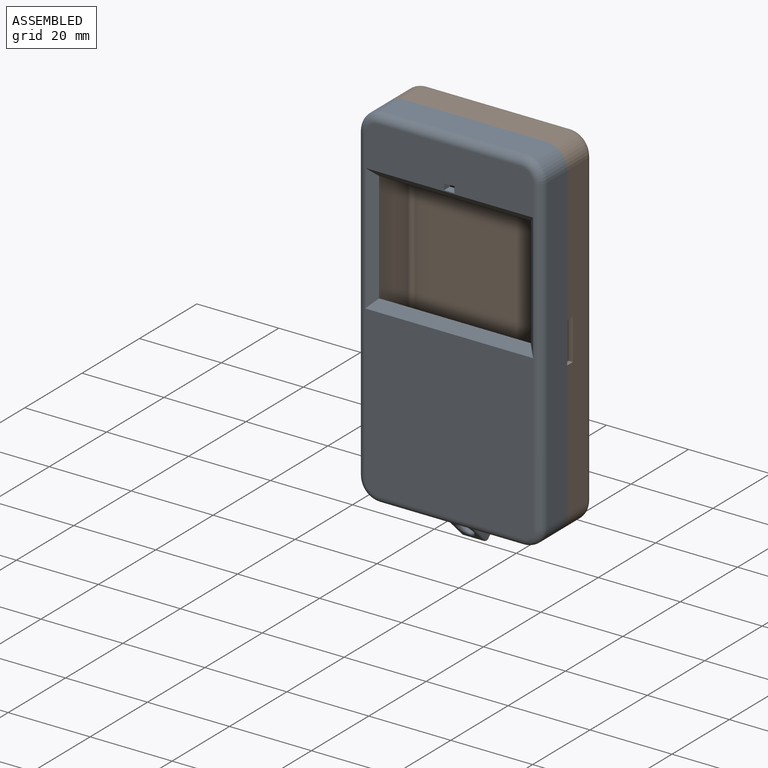
[diagram: assembled view]
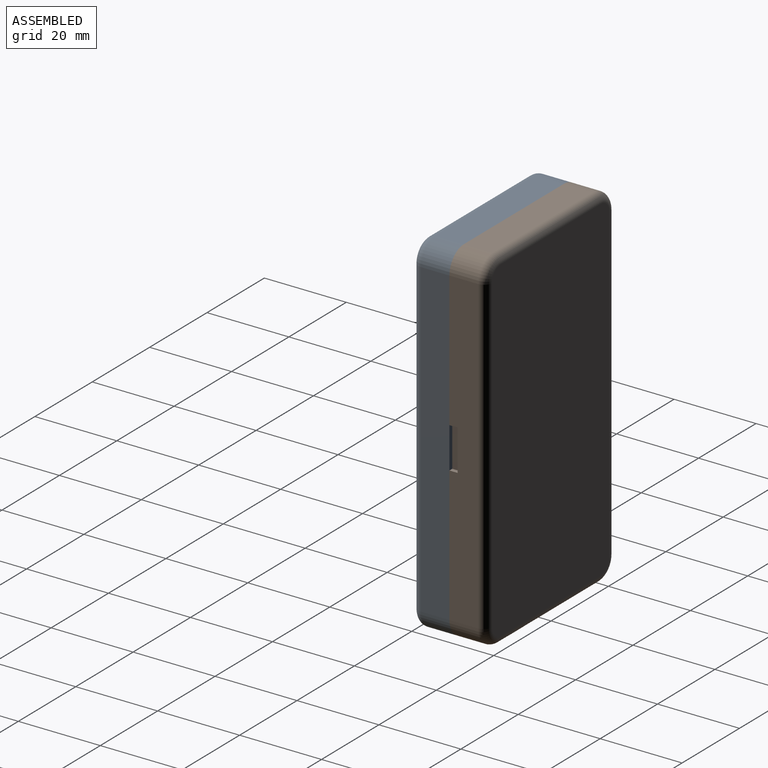
[diagram: assembled view, second angle]
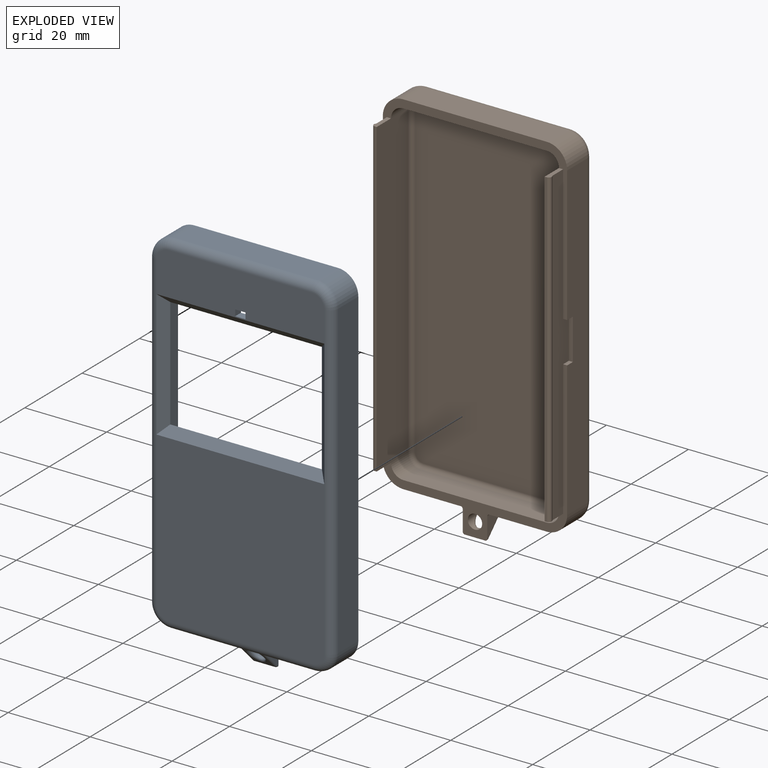
[diagram: exploded view]
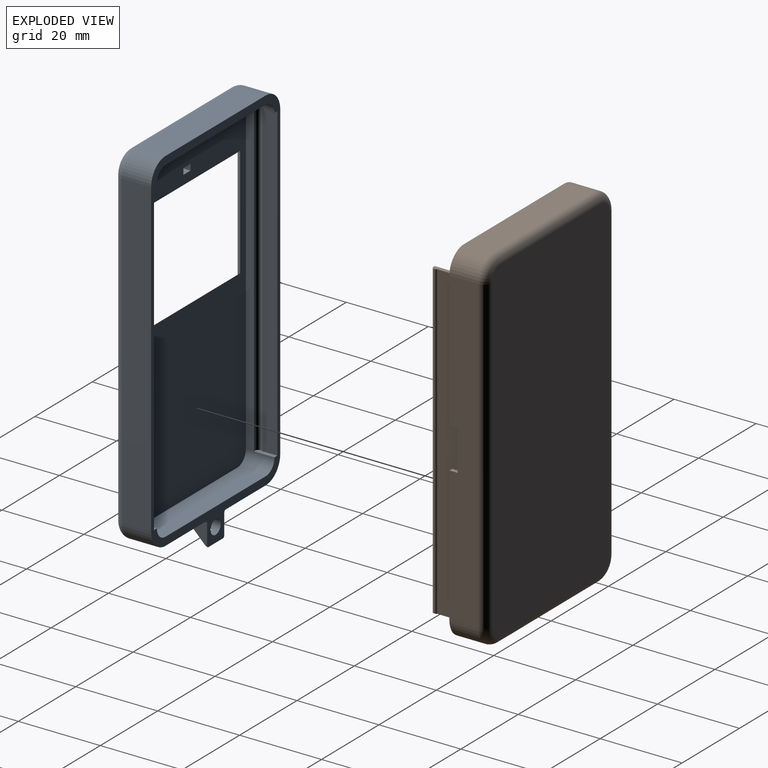
[diagram: exploded view, second angle]
ASSEMBLY  parts=2 mates=3
PART A: 63 faces, bbox 45.8x9x92.5 mm
  f0: plane 76x3.7mm, normal (1,0,0), area 281.3mm2, adj f7,f40,f42,f45
  f1: plane 76x3.7mm, normal (-1,0,0), area 281.3mm2, adj f7,f41,f43,f44
  f2: plane 76x0.45mm, normal (0,-1,0), area 34.3mm2, adj f32,f40,f42,f61
  f3: plane 76x0.45mm, normal (0,-1,0), area 34.3mm2, adj f28,f41,f43,f62
  f4: plane 41x40.5mm, normal (0,1,0), area 1656.6mm2, adj f16,f18,f20,f22,f23,f39
  f5: plane 41x10.5mm, normal (0,1,0), area 422.9mm2, adj f16,f17,f19,f21,f23,f24,f25,f26
  f6: plane 82x41mm, normal (0,-1,0), area 2351.5mm2, adj f24,f25,f26,f27,f28,f29,f30,f31
  f7: plane 92x45mm, normal (0,-1,0), area 368.6mm2, adj f0,f1,f8,f9,f10,f11,f12,f13
  f8: plane 76x7mm, normal (-1,0,0), area 532mm2, adj f7,f12,f14,f16
  f9: plane 76x7mm, normal (1,0,0), area 532mm2, adj f7,f13,f15,f23
  f10: plane 35x7mm, normal (0,0,1), area 245mm2, adj f7,f14,f15,f19
  f11: plane 35x7mm, normal (0,0,-1), area 199.3mm2, adj f7,f12,f13,f20,f53,f55,f57,f58
  f12: cylinder r=5mm len=7mm, axis (0,-1,0), area 55mm2, adj f7,f8,f11,f18
  f13: cylinder r=5mm len=7mm, axis (0,1,0), area 55mm2, adj f7,f9,f11,f22
  f14: cylinder r=5mm len=7mm, axis (0,1,0), area 55mm2, adj f7,f8,f10,f17
  f15: cylinder r=5mm len=7mm, axis (0,-1,0), area 55mm2, adj f7,f9,f10,f21
  f16: cylinder r=2mm len=76mm, axis (0,0,1), area 238.8mm2, adj f4,f5,f8,f17,f18,f38
  f17: torus R=3mm, axis (0,1,0), area 21.1mm2, adj f5,f14,f16,f19
  f18: torus R=3mm, axis (0,1,0), area 21.1mm2, adj f4,f12,f16,f20
  f19: cylinder r=2mm len=35mm, axis (1,0,0), area 110mm2, adj f5,f10,f17,f21
  f20: cylinder r=2mm len=35mm, axis (-1,0,0), area 110mm2, adj f4,f11,f18,f22
  f21: torus R=3mm, axis (0,1,0), area 21.1mm2, adj f5,f15,f19,f23
  f22: torus R=3mm, axis (0,1,0), area 21.1mm2, adj f4,f13,f20,f23
  f23: cylinder r=2mm len=76mm, axis (0,0,-1), area 238.8mm2, adj f4,f5,f9,f21,f22,f37
  f24: plane 2x1.5mm, normal (1,0,0), area 3mm2, adj f5,f6,f25,f27
  f25: plane 2.5x2mm, normal (0,0,-1), area 5mm2, adj f5,f6,f24,f26
  f26: plane 2x1.5mm, normal (-1,0,0), area 3mm2, adj f5,f6,f25,f27
  f27: plane 2.5x2mm, normal (0,0,1), area 5mm2, adj f5,f6,f24,f26
  f28: plane 76x2mm, normal (-1,0,0), area 152mm2, adj f3,f6,f29,f35
  f29: cylinder r=3mm len=7mm, axis (0,1,0), area 33mm2, adj f6,f7,f28,f30,f43
  f30: plane 35x7mm, normal (0,0,1), area 245mm2, adj f6,f7,f29,f31
  f31: cylinder r=3mm len=7mm, axis (0,1,0), area 33mm2, adj f6,f7,f30,f32,f42
  f32: plane 76x2mm, normal (1,0,0), area 152mm2, adj f2,f6,f31,f33
  f33: cylinder r=3mm len=7mm, axis (0,1,0), area 33mm2, adj f6,f7,f32,f34,f40
  f34: plane 35x7mm, normal (0,0,-1), area 245mm2, adj f6,f7,f33,f35
  f35: cylinder r=3mm len=7mm, axis (0,1,0), area 33mm2, adj f6,f7,f28,f34,f41
  f36: plane 41x2mm, normal (0,0.71,-0.71), area 110.3mm2, adj f5,f6,f37,f38
  f37: plane 31x2mm, normal (-0.71,0.71,0), area 82mm2, adj f6,f23,f36,f39
  f38: plane 31x2mm, normal (0.71,0.71,0), area 82mm2, adj f6,f16,f36,f39
  f39: plane 41x2mm, normal (0,0.71,0.71), area 110.3mm2, adj f4,f6,f37,f38
  f40: plane 5x1.2mm, normal (0,0,-1), area 5.1mm2, adj f0,f2,f7,f33,f45,f61
  f41: plane 5x1.2mm, normal (0,0,-1), area 5.1mm2, adj f1,f3,f7,f35,f44,f62
  f42: plane 5x1.2mm, normal (0,0,1), area 5.1mm2, adj f0,f2,f7,f31,f45,f61
  f43: plane 5x1.2mm, normal (0,0,1), area 5.1mm2, adj f1,f3,f7,f29,f44,f62
  f44: plane 76x0.17mm, normal (-0.87,0.5,0), area 15.3mm2, adj f1,f41,f43,f62
  f45: plane 76x0.17mm, normal (0.87,0.5,0), area 15.3mm2, adj f0,f40,f42,f61
  f46: cylinder r=1mm len=5mm, axis (-1,0,0), area 3.9mm2, adj f7,f47,f51,f54
  f47: plane 5.56x5.56mm, normal (0,0.71,-0.71), area 16.8mm2, adj f46,f52,f56,f57,f60
  f48: plane 5.21x5mm, normal (1,0,0), area 13.5mm2, adj f7,f51,f52,f53
  f49: plane 5.21x5mm, normal (-1,0,0), area 13.5mm2, adj f7,f54,f56,f59
  f50: cylinder r=1.75mm len=5.49mm, axis (0,-1,0), area 35.3mm2, adj f7,f60
  f51: torus R=0.5mm, axis (1,0,0), area 0.5mm2, adj f7,f46,f48,f52
  f52: cylinder r=0.5mm len=5.91mm, axis (0,-0.71,-0.71), area 5.9mm2, adj f47,f48,f51,f55
  f53: cylinder r=0.5mm len=5.21mm, axis (0,1,0), area 4.1mm2, adj f7,f11,f48,f55
  f54: torus R=0.5mm, axis (1,0,0), area 0.5mm2, adj f7,f46,f49,f56
  f55: bspline ~1.66x1.04mm, area 0.9mm2, adj f11,f52,f53,f57
  f56: cylinder r=0.5mm len=5.91mm, axis (0,0.71,0.71), area 5.9mm2, adj f47,f49,f54,f58
  f57: cylinder r=0.5mm len=5mm, axis (-1,0,0), area 2mm2, adj f11,f47,f55,f58
  f58: bspline ~1.66x1mm, area 0.9mm2, adj f11,f56,f57,f59
  f59: cylinder r=0.5mm len=5.21mm, axis (0,-1,0), area 4.1mm2, adj f7,f11,f49,f58
  f60: bspline ~4.85x4.5mm, area 11.9mm2, adj f47,f50
  f61: cylinder r=0.75mm len=76mm, axis (0,0,1), area 119.4mm2, adj f2,f40,f42,f45
  f62: cylinder r=0.75mm len=76mm, axis (0,0,-1), area 119.4mm2, adj f3,f41,f43,f44
PART B: 69 faces, bbox 45.8x14x92.5 mm
  f0: plane 45x44mm, normal (0,-1,0), area 187.5mm2, adj f1,f3,f4,f9,f10,f11,f14,f16
  f1: plane 76x7mm, normal (1,0,0), area 512mm2, adj f0,f2,f11,f13,f31,f49,f50,f51
  f2: plane 45x38mm, normal (0,-1,0), area 161.1mm2, adj f1,f3,f4,f8,f12,f13,f14,f18
  f3: plane 76x7mm, normal (-1,0,0), area 512mm2, adj f0,f2,f10,f12,f24,f46,f47,f48
  f4: plane 76x5.7mm, normal (-1,0,0), area 301.3mm2, adj f0,f2,f41,f43,f44,f46,f47,f48
  f5: plane 76x0.45mm, normal (0,-1,0), area 34.3mm2, adj f21,f41,f43,f67
  f6: plane 76x0.45mm, normal (0,-1,0), area 34.3mm2, adj f17,f40,f42,f68
  f7: plane 82x41mm, normal (0,1,0), area 3354.3mm2, adj f24,f25,f26,f27,f28,f29,f30,f31
  f8: plane 35x7mm, normal (0,0,1), area 245mm2, adj f2,f12,f13,f27
  f9: plane 35x7mm, normal (0,0,-1), area 199.3mm2, adj f0,f10,f11,f28,f57,f59,f61,f63
  f10: cylinder r=5mm len=7mm, axis (0,-1,0), area 55mm2, adj f0,f3,f9,f26
  f11: cylinder r=5mm len=7mm, axis (0,1,0), area 55mm2, adj f0,f1,f9,f30
  f12: cylinder r=5mm len=7mm, axis (0,1,0), area 55mm2, adj f2,f3,f8,f25
  f13: cylinder r=5mm len=7mm, axis (0,-1,0), area 55mm2, adj f1,f2,f8,f29
  f14: plane 76x5.7mm, normal (1,0,0), area 301.3mm2, adj f0,f2,f40,f42,f45,f49,f50,f51
  f15: plane 80x39mm, normal (0,-1,0), area 3116.6mm2, adj f32,f33,f34,f35,f36,f37,f38,f39
  f16: cylinder r=3mm len=6mm, axis (0,1,0), area 28.3mm2, adj f0,f17,f23,f38
  f17: plane 76x11mm, normal (-1,0,0), area 836mm2, adj f6,f16,f18,f36,f40,f42
  f18: cylinder r=3mm len=6mm, axis (0,-1,0), area 28.3mm2, adj f2,f17,f19,f34
  f19: plane 35x6mm, normal (0,0,-1), area 210mm2, adj f2,f18,f20,f32
  f20: cylinder r=3mm len=6mm, axis (0,1,0), area 28.3mm2, adj f2,f19,f21,f33
  f21: plane 76x11mm, normal (1,0,0), area 836mm2, adj f5,f20,f22,f35,f41,f43
  f22: cylinder r=3mm len=6mm, axis (0,-1,0), area 28.3mm2, adj f0,f21,f23,f37
  f23: plane 35x6mm, normal (0,0,1), area 210mm2, adj f0,f16,f22,f39
  f24: cylinder r=2mm len=76mm, axis (0,0,1), area 238.8mm2, adj f3,f7,f25,f26
  f25: torus R=3mm, axis (0,1,0), area 21.1mm2, adj f7,f12,f24,f27
  f26: torus R=3mm, axis (0,1,0), area 21.1mm2, adj f7,f10,f24,f28
  f27: cylinder r=2mm len=35mm, axis (1,0,0), area 110mm2, adj f7,f8,f25,f29
  f28: cylinder r=2mm len=35mm, axis (-1,0,0), area 110mm2, adj f7,f9,f26,f30
  f29: torus R=3mm, axis (0,1,0), area 21.1mm2, adj f7,f13,f27,f31
  f30: torus R=3mm, axis (0,1,0), area 21.1mm2, adj f7,f11,f28,f31
  f31: cylinder r=2mm len=76mm, axis (0,0,-1), area 238.8mm2, adj f1,f7,f29,f30
  f32: cylinder r=1mm len=35mm, axis (-1,0,0), area 55mm2, adj f15,f19,f33,f34
  f33: torus R=2mm, axis (0,1,0), area 6.5mm2, adj f15,f20,f32,f35
  f34: torus R=2mm, axis (0,1,0), area 6.5mm2, adj f15,f18,f32,f36
  f35: cylinder r=1mm len=76mm, axis (0,0,-1), area 119.4mm2, adj f15,f21,f33,f37
  f36: cylinder r=1mm len=76mm, axis (0,0,1), area 119.4mm2, adj f15,f17,f34,f38
  f37: torus R=2mm, axis (0,1,0), area 6.5mm2, adj f15,f22,f35,f39
  f38: torus R=2mm, axis (0,1,0), area 6.5mm2, adj f15,f16,f36,f39
  f39: cylinder r=1mm len=35mm, axis (1,0,0), area 55mm2, adj f15,f23,f37,f38
  f40: plane 5x1.2mm, normal (0,0,-1), area 5.1mm2, adj f0,f6,f14,f17,f45,f68
  f41: plane 5x1.2mm, normal (0,0,-1), area 5.1mm2, adj f0,f4,f5,f21,f44,f67
  f42: plane 5x1.2mm, normal (0,0,1), area 5.1mm2, adj f2,f6,f14,f17,f45,f68
  f43: plane 5x1.2mm, normal (0,0,1), area 5.1mm2, adj f2,f4,f5,f21,f44,f67
  f44: plane 76x0.17mm, normal (-0.87,0.5,0), area 15.3mm2, adj f4,f41,f43,f67
  f45: plane 76x0.17mm, normal (0.87,0.5,0), area 15.3mm2, adj f14,f40,f42,f68
  f46: plane 2x1mm, normal (0,0,-1), area 2mm2, adj f2,f3,f4,f47
  f47: plane 10x1mm, normal (0,-1,0), area 10mm2, adj f3,f4,f46,f48
  f48: plane 2x1mm, normal (0,0,1), area 2mm2, adj f0,f3,f4,f47
  f49: plane 10x1mm, normal (0,-1,0), area 10mm2, adj f1,f14,f50,f51
  f50: plane 2x1mm, normal (0,0,1), area 2mm2, adj f0,f1,f14,f49
  f51: plane 2x1mm, normal (0,0,-1), area 2mm2, adj f1,f2,f14,f49
  f52: plane 5.56x5.56mm, normal (0,0.71,-0.71), area 16.8mm2, adj f53,f58,f61,f62,f66
  f53: cylinder r=1mm len=5mm, axis (-1,0,0), area 3.9mm2, adj f0,f52,f56,f60
  f54: plane 5.21x5mm, normal (1,0,0), area 13.5mm2, adj f0,f60,f62,f64
  f55: plane 5.21x5mm, normal (-1,0,0), area 13.5mm2, adj f0,f56,f57,f58
  f56: torus R=0.5mm, axis (1,0,0), area 0.5mm2, adj f0,f53,f55,f58
  f57: cylinder r=0.5mm len=5.21mm, axis (0,1,0), area 4.1mm2, adj f0,f9,f55,f59
  f58: cylinder r=0.5mm len=5.91mm, axis (0,0.71,0.71), area 5.9mm2, adj f52,f55,f56,f59
  f59: bspline ~1.66x1mm, area 0.9mm2, adj f9,f57,f58,f61
  f60: torus R=0.5mm, axis (1,0,0), area 0.5mm2, adj f0,f53,f54,f62
  f61: cylinder r=0.5mm len=5mm, axis (1,0,0), area 2mm2, adj f9,f52,f59,f63
  f62: cylinder r=0.5mm len=5.91mm, axis (0,-0.71,-0.71), area 5.9mm2, adj f52,f54,f60,f63
  f63: bspline ~1.66x1.04mm, area 0.9mm2, adj f9,f61,f62,f64
  f64: cylinder r=0.5mm len=5.21mm, axis (0,-1,0), area 4.1mm2, adj f0,f9,f54,f63
  f65: cylinder r=1.75mm len=5.49mm, axis (0,-1,0), area 35.3mm2, adj f0,f66
  f66: bspline ~4.85x4.5mm, area 11.9mm2, adj f52,f65
  f67: cylinder r=0.75mm len=76mm, axis (0,0,-1), area 119.4mm2, adj f5,f41,f43,f44
  f68: cylinder r=0.75mm len=76mm, axis (0,0,1), area 119.4mm2, adj f6,f40,f42,f45
PLACE A rot(axis=(0,0,-1),180deg) t=(-89.1,-5.91,5.21)mm
PLACE B rot(axis=(1,0,0),0deg) t=(-89.1,3.09,5.21)mm
MATE planar A.f7 <-> B.f2  axis (0,1,0) through (-89.1,-1.41,44.91)mm
MATE planar A.f8 <-> B.f1  axis (1,0,0) through (-66.6,-4.91,48.21)mm
MATE planar A.f10 <-> B.f8  axis (0,0,1) through (-89.1,-4.91,91.21)mm
